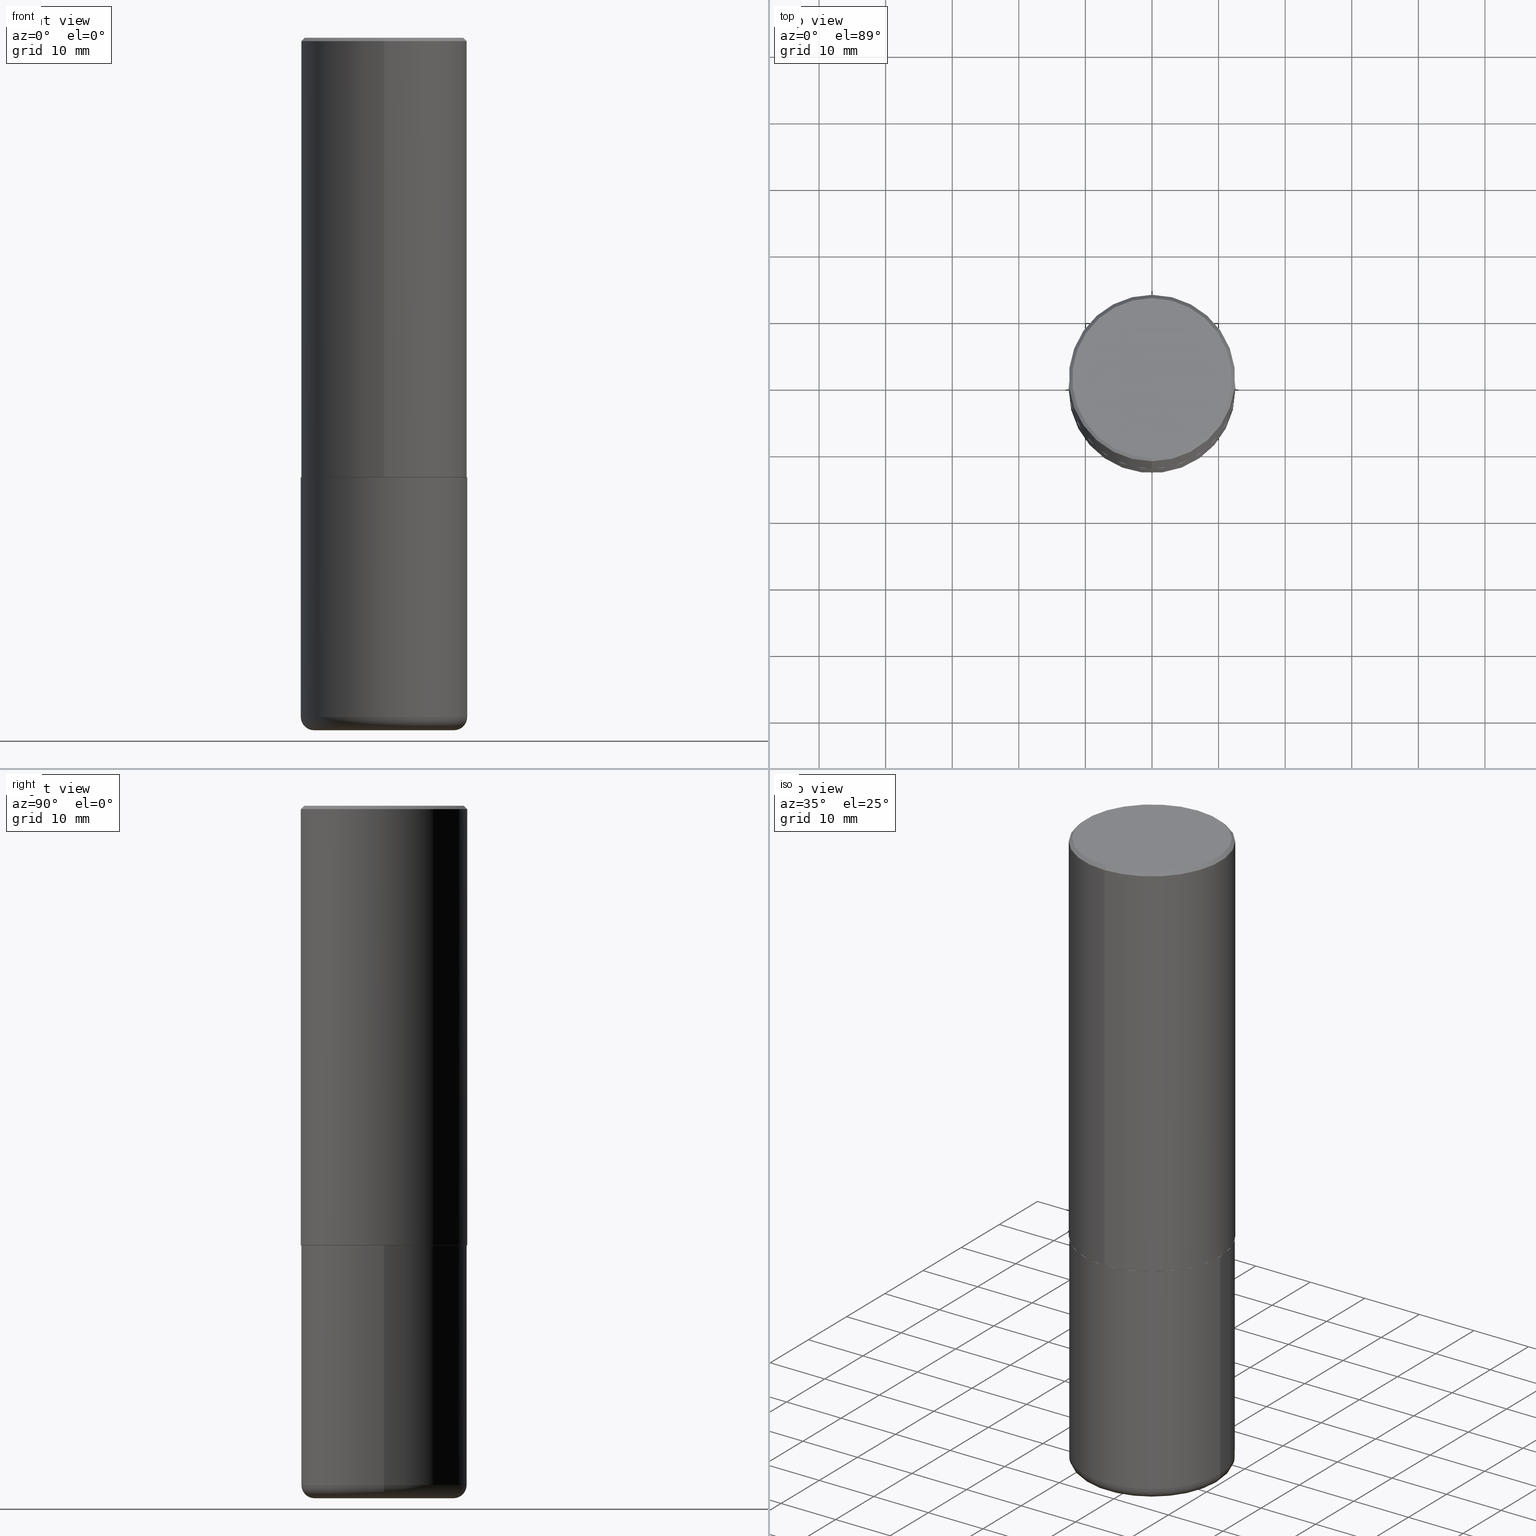
[diagram: canonical four-view strip — front | top / right | iso, engineering-drawing reading convention]
A machine part, canonical four-view strip (front | top / right | iso — engineering-drawing reading convention). The complete STEP part file that produces these views, byte-faithful:
ISO-10303-21;
HEADER;
FILE_DESCRIPTION (( 'STEP AP203' ),
    '1' );
FILE_NAME ('46656.STEP',
    '2024-03-05T03:31:19',
    ( '' ),
    ( '' ),
    'SwSTEP 2.0',
    'SolidWorks 2023',
    '' );
FILE_SCHEMA (( 'CONFIG_CONTROL_DESIGN' ));
ENDSEC;

DATA;
#1 = CYLINDRICAL_SURFACE ( 'NONE', #76, 0.4921500000000000874 ) ;
#2 = FACE_OUTER_BOUND ( 'NONE', #298, .T. ) ;
#3 = ORIENTED_EDGE ( 'NONE', *, *, #408, .T. ) ;
#4 =( NAMED_UNIT ( * ) PLANE_ANGLE_UNIT ( ) SI_UNIT ( $, .RADIAN. ) );
#5 = VERTEX_POINT ( 'NONE', #95 ) ;
#6 = DIRECTION ( 'NONE',  ( 1.000000000000000000, -6.982962677686266711E-15, 4.883557194083112901E-29 ) ) ;
#7 = EDGE_LOOP ( 'NONE', ( #326, #80 ) ) ;
#8 = AXIS2_PLACEMENT_3D ( 'NONE', #34, #66, #188 ) ;
#9 = CIRCLE ( 'NONE', #55, 0.4921499999999999764 ) ;
#10 = UNCERTAINTY_MEASURE_WITH_UNIT (LENGTH_MEASURE( 1.000000000000000082E-05 ), #135, 'distance_accuracy_value', 'NONE');
#11 = VERTEX_POINT ( 'NONE', #148 ) ;
#12 = DIRECTION ( 'NONE',  ( -2.446448598478590805E-29, 3.490078220512605001E-15, 1.000000000000000000 ) ) ;
#13 = VERTEX_POINT ( 'NONE', #407 ) ;
#14 = EDGE_CURVE ( 'NONE', #75, #331, #274, .T. ) ;
#15 = PERSON_AND_ORGANIZATION ( #280, #103 ) ;
#16 = FACE_OUTER_BOUND ( 'NONE', #158, .T. ) ;
#17 = AXIS2_PLACEMENT_3D ( 'NONE', #337, #87, #414 ) ;
#18 = CONICAL_SURFACE ( 'NONE', #231, 0.4911499999999999755, 0.7853981633974141952 ) ;
#19 = MANIFOLD_SOLID_BREP ( 'Body-Move/Copy2[1]', #140 ) ;
#20 = CARTESIAN_POINT ( 'NONE',  ( 0.4134499999999999287, -1.690819667961569252E-14, -4.015800000000000480 ) ) ;
#21 = EDGE_CURVE ( 'NONE', #369, #107, #357, .T. ) ;
#22 = PERSON_AND_ORGANIZATION ( #280, #103 ) ;
#23 = DIRECTION ( 'NONE',  ( 6.982962677686265922E-15, 1.000000000000000000, -3.486624039460256542E-15 ) ) ;
#24 = DIRECTION ( 'NONE',  ( -6.982962677686265922E-15, -1.000000000000000000, 3.486624039460256542E-15 ) ) ;
#25 = MANIFOLD_SOLID_BREP ( 'Body-Move/Copy2[2]', #124 ) ;
#26 = CIRCLE ( 'NONE', #299, 0.4134499999999999287 ) ;
#27 = VERTEX_POINT ( 'NONE', #58 ) ;
#28 = EDGE_CURVE ( 'NONE', #75, #11, #93, .T. ) ;
#29 = PLANE ( 'NONE',  #381 ) ;
#30 = VECTOR ( 'NONE', #342, 39.37007874015748143 ) ;
#31 = CARTESIAN_POINT ( 'NONE',  ( 9.820513631878272860E-29, -1.402109076052630500E-14, -4.015800000000000480 ) ) ;
#32 = AXIS2_PLACEMENT_3D ( 'NONE', #371, #339, #60 ) ;
#33 = APPROVAL ( #51, 'UNSPECIFIED' ) ;
#34 = CARTESIAN_POINT ( 'NONE',  ( 0.000000000000000000, 0.000000000000000000, 0.000000000000000000 ) ) ;
#35 = VERTEX_POINT ( 'NONE', #178 ) ;
#36 = AXIS2_PLACEMENT_3D ( 'NONE', #242, #152, #405 ) ;
#37 = APPROVAL ( #273, 'UNSPECIFIED' ) ;
#38 = DIRECTION ( 'NONE',  ( -4.937700262164378437E-15, -0.7071067811865208164, 0.7071067811865739960 ) ) ;
#39 = ORIENTED_EDGE ( 'NONE', *, *, #361, .T. ) ;
#40 = DIRECTION ( 'NONE',  ( 1.000000000000000000, -6.982962677686266711E-15, 0.000000000000000000 ) ) ;
#41 = ORIENTED_EDGE ( 'NONE', *, *, #53, .T. ) ;
#42 = ORIENTED_EDGE ( 'NONE', *, *, #47, .T. ) ;
#43 = AXIS2_PLACEMENT_3D ( 'NONE', #308, #277, #247 ) ;
#44 = AXIS2_PLACEMENT_3D ( 'NONE', #354, #325, #390 ) ;
#45 = PRODUCT_DEFINITION_FORMATION_WITH_SPECIFIED_SOURCE ( 'ANY', '', #251, .NOT_KNOWN. ) ;
#46 = DIRECTION ( 'NONE',  ( -6.982962677686265922E-15, -1.000000000000000000, 3.337287582609300506E-15 ) ) ;
#47 = EDGE_CURVE ( 'NONE', #114, #13, #176, .T. ) ;
#48 = ORIENTED_EDGE ( 'NONE', *, *, #238, .F. ) ;
#49 = COORDINATED_UNIVERSAL_TIME_OFFSET ( 5, 0, .BEHIND. ) ;
#50 = DIRECTION ( 'NONE',  ( -6.982962677686265922E-15, -1.000000000000000000, 3.337287582609300506E-15 ) ) ;
#51 = APPROVAL_STATUS ( 'not_yet_approved' ) ;
#52 = CARTESIAN_POINT ( 'NONE',  ( 3.436665081823296565E-15, 0.4921499999999999764, -0.02000000000000182188 ) ) ;
#53 = EDGE_CURVE ( 'NONE', #27, #11, #54, .T. ) ;
#54 = CIRCLE ( 'NONE', #160, 0.4921500000000002539 ) ;
#55 = AXIS2_PLACEMENT_3D ( 'NONE', #285, #321, #162 ) ;
#56 = APPROVAL_PERSON_ORGANIZATION ( #177, #37, #312 ) ;
#57 = DIRECTION ( 'NONE',  ( 1.000000000000000000, 0.000000000000000000, 0.000000000000000000 ) ) ;
#58 = CARTESIAN_POINT ( 'NONE',  ( -3.436665081823234245E-15, -0.4921500000000093022, -2.597399999999999043 ) ) ;
#59 = PERSON_AND_ORGANIZATION_ROLE ( 'design_supplier' ) ;
#60 = DIRECTION ( 'NONE',  ( 6.982962677686265922E-15, 1.000000000000000000, -3.490078220512605001E-15 ) ) ;
#61 = CARTESIAN_POINT ( 'NONE',  ( 0.000000000000000000, 0.000000000000000000, 0.000000000000000000 ) ) ;
#62 = EDGE_CURVE ( 'NONE', #205, #369, #309, .T. ) ;
#63 = FACE_OUTER_BOUND ( 'NONE', #356, .T. ) ;
#64 = DESIGN_CONTEXT ( 'detailed design', #119, 'design' ) ;
#65 = AXIS2_PLACEMENT_3D ( 'NONE', #20, #305, #374 ) ;
#66 = DIRECTION ( 'NONE',  ( -2.446448598478591086E-29, 3.490078220512604606E-15, 1.000000000000000000 ) ) ;
#67 = DIRECTION ( 'NONE',  ( -2.446448598478591086E-29, 3.490078220512604606E-15, 1.000000000000000000 ) ) ;
#68 = FACE_OUTER_BOUND ( 'NONE', #83, .T. ) ;
#69 = EDGE_CURVE ( 'NONE', #304, #5, #186, .T. ) ;
#70 = AXIS2_PLACEMENT_3D ( 'NONE', #257, #145, #355 ) ;
#71 = CARTESIAN_POINT ( 'NONE',  ( 6.354405589688293982E-29, -9.065129169959442290E-15, -2.597400000000000375 ) ) ;
#72 = DIRECTION ( 'NONE',  ( -2.446448598478591086E-29, 3.490078220512604606E-15, 1.000000000000000000 ) ) ;
#73 = LINE ( 'NONE', #323, #315 ) ;
#74 = CARTESIAN_POINT ( 'NONE',  ( 0.4921499999999999764, -3.436665081823295777E-15, 2.399810400207969603E-29 ) ) ;
#75 = VERTEX_POINT ( 'NONE', #97 ) ;
#76 = AXIS2_PLACEMENT_3D ( 'NONE', #385, #72, #388 ) ;
#77 = FACE_OUTER_BOUND ( 'NONE', #368, .T. ) ;
#78 = ORIENTED_EDGE ( 'NONE', *, *, #391, .F. ) ;
#79 = CARTESIAN_POINT ( 'NONE',  ( 9.820513631878272860E-29, -1.402109076052630500E-14, -4.015800000000000480 ) ) ;
#80 = ORIENTED_EDGE ( 'NONE', *, *, #21, .T. ) ;
#81 = EDGE_CURVE ( 'NONE', #27, #5, #278, .T. ) ;
#82 = DIRECTION ( 'NONE',  ( -2.446448598478591086E-29, 3.490078220512604606E-15, 1.000000000000000000 ) ) ;
#83 = EDGE_LOOP ( 'NONE', ( #227, #365, #3, #208 ) ) ;
#84 = AXIS2_PLACEMENT_3D ( 'NONE', #31, #219, #225 ) ;
#85 = APPROVAL_STATUS ( 'not_yet_approved' ) ;
#86 = ORIENTED_EDGE ( 'NONE', *, *, #81, .F. ) ;
#87 = DIRECTION ( 'NONE',  ( -2.445468806185136597E-29, 3.491481338843145583E-15, 1.000000000000000000 ) ) ;
#88 = ADVANCED_FACE ( 'NONE', ( #63 ), #409, .T. ) ;
#89 = MECHANICAL_CONTEXT ( 'NONE', #382, 'mechanical' ) ;
#90 = DIRECTION ( 'NONE',  ( 4.937700262164533054E-15, 0.7071067811865430208, -0.7071067811865520136 ) ) ;
#91 = LOCAL_TIME ( 22, 31, 19.00000000000000000, #306 ) ;
#92 = DATE_AND_TIME ( #406, #402 ) ;
#93 = LINE ( 'NONE', #129, #255 ) ;
#94 = COORDINATED_UNIVERSAL_TIME_OFFSET ( 5, 0, .BEHIND. ) ;
#95 = CARTESIAN_POINT ( 'NONE',  ( -3.376394089603258656E-15, -0.4921500000000000874, -0.01999999999999839059 ) ) ;
#96 = EDGE_CURVE ( 'NONE', #146, #205, #349, .T. ) ;
#97 = CARTESIAN_POINT ( 'NONE',  ( 3.493383360364596291E-15, 0.4911499999999908717, -2.598400000000002485 ) ) ;
#98 = FACE_OUTER_BOUND ( 'NONE', #240, .T. ) ;
#99 = ORIENTED_EDGE ( 'NONE', *, *, #361, .F. ) ;
#100 = EDGE_CURVE ( 'NONE', #35, #131, #161, .T. ) ;
#101 = DIRECTION ( 'NONE',  ( -2.446448598478591086E-29, 3.490078220512604606E-15, 1.000000000000000000 ) ) ;
#102 = CARTESIAN_POINT ( 'NONE',  ( 6.354306145991459756E-29, -9.072265110850031044E-15, -2.598400000000000265 ) ) ;
#103 = ORGANIZATION ( 'UNSPECIFIED', 'UNSPECIFIED', '' ) ;
#104 = ADVANCED_FACE ( 'NONE', ( #16 ), #275, .T. ) ;
#105 = ORIENTED_EDGE ( 'NONE', *, *, #128, .T. ) ;
#106 = CARTESIAN_POINT ( 'NONE',  ( 3.496936074043333291E-15, 0.4921500000000000874, -1.717641996225278752E-15 ) ) ;
#107 = VERTEX_POINT ( 'NONE', #154 ) ;
#108 = AXIS2_PLACEMENT_3D ( 'NONE', #404, #118, #150 ) ;
#109 = EDGE_LOOP ( 'NONE', ( #284, #78, #42, #105 ) ) ;
#110 = EDGE_CURVE ( 'NONE', #35, #146, #224, .T. ) ;
#111 = CARTESIAN_POINT ( 'NONE',  ( -3.429682119145545865E-15, -0.4911500000000090238, -2.598399999999999377 ) ) ;
#112 = ORIENTED_EDGE ( 'NONE', *, *, #69, .T. ) ;
#113 = APPROVAL_DATE_TIME ( #399, #37 ) ;
#114 = VERTEX_POINT ( 'NONE', #212 ) ;
#115 = AXIS2_PLACEMENT_3D ( 'NONE', #71, #132, #320 ) ;
#116 = ADVANCED_FACE ( 'NONE', ( #121 ), #244, .F. ) ;
#117 = COORDINATED_UNIVERSAL_TIME_OFFSET ( 5, 0, .BEHIND. ) ;
#118 = DIRECTION ( 'NONE',  ( 2.438088387897960049E-29, -3.491481338843145188E-15, -1.000000000000000000 ) ) ;
#119 = APPLICATION_CONTEXT ( 'configuration controlled 3d designs of mechanical parts and assemblies' ) ;
#120 = APPROVAL_ROLE ( '' ) ;
#121 = FACE_OUTER_BOUND ( 'NONE', #333, .T. ) ;
#122 = PERSON_AND_ORGANIZATION ( #280, #103 ) ;
#123 = CARTESIAN_POINT ( 'NONE',  ( -0.4921499999999999764, 3.496936074043332897E-15, -2.420853904668951509E-29 ) ) ;
#124 = CLOSED_SHELL ( 'NONE', ( #387, #175, #88, #353, #289, #223, #292, #116 ) ) ;
#125 = CC_DESIGN_SECURITY_CLASSIFICATION ( #351, ( #45 ) ) ;
#126 = DATE_AND_TIME ( #336, #218 ) ;
#127 = CARTESIAN_POINT ( 'NONE',  ( 0.4921500000000000874, -1.745775584234960235E-14, -4.015800000000000480 ) ) ;
#128 = EDGE_CURVE ( 'NONE', #13, #5, #142, .T. ) ;
#129 = CARTESIAN_POINT ( 'NONE',  ( 3.489830646685794998E-15, 0.4911499999999908717, -2.598400000000002485 ) ) ;
#130 = CYLINDRICAL_SURFACE ( 'NONE', #8, 0.4921500000000000874 ) ;
#131 = VERTEX_POINT ( 'NONE', #127 ) ;
#132 = DIRECTION ( 'NONE',  ( -2.446448598478591086E-29, 3.490078220512604606E-15, 1.000000000000000000 ) ) ;
#133 = VECTOR ( 'NONE', #228, 39.37007874015748143 ) ;
#134 = PLANE ( 'NONE',  #324 ) ;
#135 =( CONVERSION_BASED_UNIT ( 'INCH', #395 ) LENGTH_UNIT ( ) NAMED_UNIT ( #380 ) );
#136 = ORIENTED_EDGE ( 'NONE', *, *, #147, .F. ) ;
#137 = LINE ( 'NONE', #106, #179 ) ;
#138 = ORIENTED_EDGE ( 'NONE', *, *, #110, .F. ) ;
#139 = CARTESIAN_POINT ( 'NONE',  ( -3.325455558251186907E-45, 4.744060441062489317E-31, 1.359299173634482631E-16 ) ) ;
#140 = CLOSED_SHELL ( 'NONE', ( #398, #329, #245, #169, #252, #104 ) ) ;
#141 = EDGE_LOOP ( 'NONE', ( #328, #363, #136, #174 ) ) ;
#142 = CIRCLE ( 'NONE', #267, 0.4921500000000000319 ) ;
#143 = FACE_OUTER_BOUND ( 'NONE', #296, .T. ) ;
#144 = ORIENTED_EDGE ( 'NONE', *, *, #100, .T. ) ;
#145 = DIRECTION ( 'NONE',  ( -2.445468806185136597E-29, 3.491481338843145583E-15, 1.000000000000000000 ) ) ;
#146 = VERTEX_POINT ( 'NONE', #352 ) ;
#147 = EDGE_CURVE ( 'NONE', #107, #369, #9, .T. ) ;
#148 = CARTESIAN_POINT ( 'NONE',  ( 3.496936074043366423E-15, 0.4921499999999912056, -2.597400000000002152 ) ) ;
#149 = TOROIDAL_SURFACE ( 'NONE', #84, 0.4134499999999999287, 0.07870000000000026974 ) ;
#150 = DIRECTION ( 'NONE',  ( -1.000000000000000000, 6.982962677686265922E-15, -4.876176775795935793E-29 ) ) ;
#151 = DATE_AND_TIME ( #410, #332 ) ;
#152 = DIRECTION ( 'NONE',  ( -2.445468806185136597E-29, 3.491481338843145583E-15, 1.000000000000000000 ) ) ;
#153 = DIRECTION ( 'NONE',  ( 0.000000000000000000, 0.000000000000000000, 1.000000000000000000 ) ) ;
#154 = CARTESIAN_POINT ( 'NONE',  ( 0.4921499999999999764, -1.250893019267332682E-14, -2.598400000000000265 ) ) ;
#155 = CIRCLE ( 'NONE', #394, 0.4921500000000000319 ) ;
#156 = CALENDAR_DATE ( 2024, 4, 3 ) ;
#157 = CARTESIAN_POINT ( 'NONE',  ( -3.436665081823296565E-15, -0.4921500000000000874, 1.717641996225278752E-15 ) ) ;
#158 = EDGE_LOOP ( 'NONE', ( #138, #198 ) ) ;
#159 = DIRECTION ( 'NONE',  ( -6.982962677686265133E-15, -1.000000000000000000, 3.490078220512604606E-15 ) ) ;
#160 = AXIS2_PLACEMENT_3D ( 'NONE', #413, #180, #206 ) ;
#161 = CIRCLE ( 'NONE', #65, 0.07870000000000031137 ) ;
#162 = DIRECTION ( 'NONE',  ( 1.000000000000000000, -6.982962677686265922E-15, 0.000000000000000000 ) ) ;
#163 = DIRECTION ( 'NONE',  ( -2.446448598478590525E-29, 3.490078220512605001E-15, 1.000000000000000000 ) ) ;
#164 = PRODUCT_DEFINITION ( 'UNKNOWN', '', #45, #64 ) ;
#165 = DIRECTION ( 'NONE',  ( 1.000000000000000000, -6.982962677686265922E-15, 4.876176775795935793E-29 ) ) ;
#166 = ORIENTED_EDGE ( 'NONE', *, *, #96, .T. ) ;
#167 =( LENGTH_UNIT ( ) NAMED_UNIT ( * ) SI_UNIT ( $, .METRE. ) );
#168 = ORIENTED_EDGE ( 'NONE', *, *, #347, .T. ) ;
#169 = ADVANCED_FACE ( 'NONE', ( #259 ), #191, .T. ) ;
#170 = ORIENTED_EDGE ( 'NONE', *, *, #110, .T. ) ;
#171 =( NAMED_UNIT ( * ) SI_UNIT ( $, .STERADIAN. ) SOLID_ANGLE_UNIT ( ) );
#172 = CIRCLE ( 'NONE', #44, 0.4921500000000000319 ) ;
#173 = ORIENTED_EDGE ( 'NONE', *, *, #192, .T. ) ;
#174 = ORIENTED_EDGE ( 'NONE', *, *, #347, .F. ) ;
#175 = ADVANCED_FACE ( 'NONE', ( #98 ), #1, .T. ) ;
#176 = LINE ( 'NONE', #52, #230 ) ;
#177 = PERSON_AND_ORGANIZATION ( #280, #103 ) ;
#178 = CARTESIAN_POINT ( 'NONE',  ( 0.4134499999999999287, -1.718297626098264901E-14, -4.094500000000000917 ) ) ;
#179 = VECTOR ( 'NONE', #12, 39.37007874015748143 ) ;
#180 = DIRECTION ( 'NONE',  ( -2.446448598478591086E-29, 3.490078220512604606E-15, 1.000000000000000000 ) ) ;
#181 = CC_DESIGN_DATE_AND_TIME_ASSIGNMENT ( #126, #207, ( #164 ) ) ;
#182 = SECURITY_CLASSIFICATION_LEVEL ( 'unclassified' ) ;
#183 = CARTESIAN_POINT ( 'NONE',  ( 4.892897196957208060E-31, -6.980156441025246535E-17, -0.02000000000000010797 ) ) ;
#184 = ADVANCED_BREP_SHAPE_REPRESENTATION ( '46656', ( #19, #25, #358 ), #195 ) ;
#185 = DATE_AND_TIME ( #213, #293 ) ;
#186 = LINE ( 'NONE', #253, #209 ) ;
#187 = CC_DESIGN_DATE_AND_TIME_ASSIGNMENT ( #185, #341, ( #351 ) ) ;
#188 = DIRECTION ( 'NONE',  ( -6.982962677686265922E-15, -1.000000000000000000, 3.490078220512604606E-15 ) ) ;
#189 = DIRECTION ( 'NONE',  ( -6.982962677686265922E-15, -1.000000000000000000, 3.337287582609300506E-15 ) ) ;
#190 = AXIS2_PLACEMENT_3D ( 'NONE', #384, #101, #189 ) ;
#191 = CYLINDRICAL_SURFACE ( 'NONE', #373, 0.4921499999999999764 ) ;
#192 = EDGE_CURVE ( 'NONE', #5, #13, #155, .T. ) ;
#193 = CARTESIAN_POINT ( 'NONE',  ( 0.000000000000000000, 0.000000000000000000, 0.000000000000000000 ) ) ;
#194 = AXIS2_PLACEMENT_3D ( 'NONE', #335, #250, #50 ) ;
#195 =( GEOMETRIC_REPRESENTATION_CONTEXT ( 3 ) GLOBAL_UNCERTAINTY_ASSIGNED_CONTEXT ( ( #10 ) ) GLOBAL_UNIT_ASSIGNED_CONTEXT ( ( #135, #4, #171 ) ) REPRESENTATION_CONTEXT ( 'NONE', 'WORKASPACE' ) );
#196 = CARTESIAN_POINT ( 'NONE',  ( -0.4921499999999999764, -8.049741861644835125E-15, -2.598400000000000265 ) ) ;
#197 = CC_DESIGN_APPROVAL ( #263, ( #164 ) ) ;
#198 = ORIENTED_EDGE ( 'NONE', *, *, #340, .F. ) ;
#199 = DIRECTION ( 'NONE',  ( -2.446448598478591086E-29, 3.490078220512604606E-15, 1.000000000000000000 ) ) ;
#200 = ORIENTED_EDGE ( 'NONE', *, *, #47, .F. ) ;
#201 = ORIENTED_EDGE ( 'NONE', *, *, #100, .F. ) ;
#202 = CYLINDRICAL_SURFACE ( 'NONE', #307, 0.4921499999999999764 ) ;
#203 = ORIENTED_EDGE ( 'NONE', *, *, #322, .F. ) ;
#204 = PERSON_AND_ORGANIZATION ( #280, #103 ) ;
#205 = VERTEX_POINT ( 'NONE', #220 ) ;
#206 = DIRECTION ( 'NONE',  ( -6.982962677686266711E-15, -1.000000000000000000, 3.330506545156064285E-15 ) ) ;
#207 = DATE_TIME_ROLE ( 'creation_date' ) ;
#208 = ORIENTED_EDGE ( 'NONE', *, *, #314, .F. ) ;
#209 = VECTOR ( 'NONE', #378, 39.37007874015748143 ) ;
#210 = CONICAL_SURFACE ( 'NONE', #190, 0.4911499999999999755, 0.7853981633974141952 ) ;
#211 = APPROVAL_DATE_TIME ( #92, #33 ) ;
#212 = CARTESIAN_POINT ( 'NONE',  ( 3.366835455046433267E-15, 0.4721499999999999031, -1.511910514451577641E-15 ) ) ;
#213 = CALENDAR_DATE ( 2024, 4, 3 ) ;
#214 = DIRECTION ( 'NONE',  ( 5.024295867787889629E-15, 0.7071067811865257013, 0.7071067811865691111 ) ) ;
#215 = CC_DESIGN_PERSON_AND_ORGANIZATION_ASSIGNMENT ( #15, #310, ( #351 ) ) ;
#216 = DIRECTION ( 'NONE',  ( -6.982962677686265922E-15, -1.000000000000000000, 3.486624039460256542E-15 ) ) ;
#217 = CONICAL_SURFACE ( 'NONE', #418, 0.4921500000000000319, 0.7853981633974453924 ) ;
#218 = LOCAL_TIME ( 22, 31, 19.00000000000000000, #94 ) ;
#219 = DIRECTION ( 'NONE',  ( -2.445468806185136597E-29, 3.491481338843145583E-15, 1.000000000000000000 ) ) ;
#220 = CARTESIAN_POINT ( 'NONE',  ( -0.4921500000000000874, -1.052415468648297131E-14, -4.015800000000000480 ) ) ;
#221 = ORIENTED_EDGE ( 'NONE', *, *, #192, .F. ) ;
#222 = AXIS2_PLACEMENT_3D ( 'NONE', #313, #334, #23 ) ;
#223 = ADVANCED_FACE ( 'NONE', ( #68 ), #210, .T. ) ;
#224 = CIRCLE ( 'NONE', #36, 0.4134499999999999287 ) ;
#225 = DIRECTION ( 'NONE',  ( 1.000000000000000000, -6.982962677686266711E-15, 4.883557194083112901E-29 ) ) ;
#226 = DIRECTION ( 'NONE',  ( -6.982962677686265922E-15, -1.000000000000000000, 3.337287582609300506E-15 ) ) ;
#227 = ORIENTED_EDGE ( 'NONE', *, *, #28, .F. ) ;
#228 = DIRECTION ( 'NONE',  ( -2.445468806185136877E-29, 3.491481338843145188E-15, 1.000000000000000000 ) ) ;
#229 = ORIENTED_EDGE ( 'NONE', *, *, #314, .T. ) ;
#230 = VECTOR ( 'NONE', #90, 39.37007874015748143 ) ;
#231 = AXIS2_PLACEMENT_3D ( 'NONE', #330, #269, #46 ) ;
#232 = DIRECTION ( 'NONE',  ( -6.982962677686265133E-15, -1.000000000000000000, 3.490078220512604606E-15 ) ) ;
#233 = ORIENTED_EDGE ( 'NONE', *, *, #322, .T. ) ;
#234 = CARTESIAN_POINT ( 'NONE',  ( 1.001297202692504327E-28, -1.429587034189326465E-14, -4.094500000000000917 ) ) ;
#235 = ORIENTED_EDGE ( 'NONE', *, *, #14, .F. ) ;
#236 = DIRECTION ( 'NONE',  ( -2.445468806185136597E-29, 3.491481338843145583E-15, 1.000000000000000000 ) ) ;
#237 = ORIENTED_EDGE ( 'NONE', *, *, #375, .T. ) ;
#238 = EDGE_CURVE ( 'NONE', #304, #114, #256, .T. ) ;
#239 = SHAPE_DEFINITION_REPRESENTATION ( #415, #184 ) ;
#240 = EDGE_LOOP ( 'NONE', ( #41, #233, #221, #86 ) ) ;
#241 = PERSON_AND_ORGANIZATION_ROLE ( 'creator' ) ;
#242 = CARTESIAN_POINT ( 'NONE',  ( 1.001297202692504327E-28, -1.429587034189326465E-14, -4.094500000000000917 ) ) ;
#243 = APPROVAL_DATE_TIME ( #151, #263 ) ;
#244 = PLANE ( 'NONE',  #32 ) ;
#245 = ADVANCED_FACE ( 'NONE', ( #261 ), #134, .F. ) ;
#246 = APPLICATION_PROTOCOL_DEFINITION ( 'international standard', 'config_control_design', 1994, #119 ) ;
#247 = DIRECTION ( 'NONE',  ( -1.000000000000000000, 7.105427357600989237E-15, 0.000000000000000000 ) ) ;
#248 = CIRCLE ( 'NONE', #70, 0.4921500000000000319 ) ;
#249 = PERSON_AND_ORGANIZATION ( #280, #103 ) ;
#250 = DIRECTION ( 'NONE',  ( -2.446448598478591086E-29, 3.490078220512604606E-15, 1.000000000000000000 ) ) ;
#251 = PRODUCT ( '46656', '46656', '', ( #89 ) ) ;
#252 = ADVANCED_FACE ( 'NONE', ( #416 ), #149, .T. ) ;
#253 = CARTESIAN_POINT ( 'NONE',  ( -3.376394089603258656E-15, -0.4921500000000000874, -0.01999999999999839059 ) ) ;
#254 = DIRECTION ( 'NONE',  ( -2.446448598478591086E-29, 3.490078220512604606E-15, 1.000000000000000000 ) ) ;
#255 = VECTOR ( 'NONE', #214, 39.37007874015748854 ) ;
#256 = CIRCLE ( 'NONE', #411, 0.4721499999999999031 ) ;
#257 = CARTESIAN_POINT ( 'NONE',  ( 9.820513631878272860E-29, -1.402109076052630500E-14, -4.015800000000000480 ) ) ;
#258 = ORIENTED_EDGE ( 'NONE', *, *, #62, .F. ) ;
#259 = FACE_OUTER_BOUND ( 'NONE', #294, .T. ) ;
#260 = CC_DESIGN_PERSON_AND_ORGANIZATION_ASSIGNMENT ( #204, #372, ( #164 ) ) ;
#261 = FACE_OUTER_BOUND ( 'NONE', #7, .T. ) ;
#262 = CIRCLE ( 'NONE', #288, 0.4721499999999999031 ) ;
#263 = APPROVAL ( #85, 'UNSPECIFIED' ) ;
#264 = ORIENTED_EDGE ( 'NONE', *, *, #391, .T. ) ;
#265 = FACE_OUTER_BOUND ( 'NONE', #109, .T. ) ;
#266 = ORIENTED_EDGE ( 'NONE', *, *, #81, .T. ) ;
#267 = AXIS2_PLACEMENT_3D ( 'NONE', #183, #311, #24 ) ;
#268 = ORIENTED_EDGE ( 'NONE', *, *, #408, .F. ) ;
#269 = DIRECTION ( 'NONE',  ( -2.446448598478591086E-29, 3.490078220512604606E-15, 1.000000000000000000 ) ) ;
#270 = ORIENTED_EDGE ( 'NONE', *, *, #128, .F. ) ;
#271 = CARTESIAN_POINT ( 'NONE',  ( 4.892897196957208060E-31, -6.980156441025246535E-17, -0.02000000000000010797 ) ) ;
#272 = EDGE_LOOP ( 'NONE', ( #397, #400, #144, #360 ) ) ;
#273 = APPROVAL_STATUS ( 'not_yet_approved' ) ;
#274 = CIRCLE ( 'NONE', #194, 0.4911499999999999755 ) ;
#275 = PLANE ( 'NONE',  #108 ) ;
#276 = CC_DESIGN_PERSON_AND_ORGANIZATION_ASSIGNMENT ( #22, #403, ( #251 ) ) ;
#277 = DIRECTION ( 'NONE',  ( 7.105427357601001859E-15, 1.000000000000000000, -3.491481338843145583E-15 ) ) ;
#278 = LINE ( 'NONE', #157, #30 ) ;
#279 = APPLICATION_PROTOCOL_DEFINITION ( 'international standard', 'config_control_design', 1994, #382 ) ;
#280 = PERSON ( 'UNSPECIFIED', 'UNSPECIFIED', 'UNSPECIFIED', ('UNSPECIFIED'), ('UNSPECIFIED'), ('UNSPECIFIED') ) ;
#281 = ORIENTED_EDGE ( 'NONE', *, *, #28, .T. ) ;
#282 = AXIS2_PLACEMENT_3D ( 'NONE', #79, #295, #6 ) ;
#283 = CC_DESIGN_APPROVAL ( #33, ( #45 ) ) ;
#284 = ORIENTED_EDGE ( 'NONE', *, *, #69, .F. ) ;
#285 = CARTESIAN_POINT ( 'NONE',  ( 6.354306145991459756E-29, -9.072265110850031044E-15, -2.598400000000000265 ) ) ;
#286 = ORIENTED_EDGE ( 'NONE', *, *, #318, .F. ) ;
#287 = CARTESIAN_POINT ( 'NONE',  ( 6.356852038286771524E-29, -9.068619248179953101E-15, -2.598400000000000265 ) ) ;
#288 = AXIS2_PLACEMENT_3D ( 'NONE', #139, #82, #232 ) ;
#289 = ADVANCED_FACE ( 'NONE', ( #343 ), #130, .T. ) ;
#290 = CARTESIAN_POINT ( 'NONE',  ( 0.000000000000000000, 0.000000000000000000, 0.000000000000000000 ) ) ;
#291 = CARTESIAN_POINT ( 'NONE',  ( -3.325455558251186907E-45, 4.744060441062489317E-31, 1.359299173634482631E-16 ) ) ;
#292 = ADVANCED_FACE ( 'NONE', ( #2 ), #29, .F. ) ;
#293 = LOCAL_TIME ( 22, 31, 19.00000000000000000, #376 ) ;
#294 = EDGE_LOOP ( 'NONE', ( #258, #237, #168, #396 ) ) ;
#295 = DIRECTION ( 'NONE',  ( -2.445468806185136597E-29, 3.491481338843145583E-15, 1.000000000000000000 ) ) ;
#296 = EDGE_LOOP ( 'NONE', ( #170, #166, #286, #201 ) ) ;
#297 = CARTESIAN_POINT ( 'NONE',  ( 6.356852038286772645E-29, -9.068619248179954679E-15, -2.598400000000000709 ) ) ;
#298 = EDGE_LOOP ( 'NONE', ( #99, #235 ) ) ;
#299 = AXIS2_PLACEMENT_3D ( 'NONE', #234, #236, #40 ) ;
#300 = APPROVAL_PERSON_ORGANIZATION ( #370, #33, #367 ) ;
#301 = CC_DESIGN_PERSON_AND_ORGANIZATION_ASSIGNMENT ( #338, #241, ( #45 ) ) ;
#302 = ORIENTED_EDGE ( 'NONE', *, *, #238, .T. ) ;
#303 = DIRECTION ( 'NONE',  ( 6.982962677686265922E-15, 1.000000000000000000, -3.486624039460256542E-15 ) ) ;
#304 = VERTEX_POINT ( 'NONE', #417 ) ;
#305 = DIRECTION ( 'NONE',  ( -6.982962677686266711E-15, -1.000000000000000000, 3.491481338843145583E-15 ) ) ;
#306 = COORDINATED_UNIVERSAL_TIME_OFFSET ( 5, 0, .BEHIND. ) ;
#307 = AXIS2_PLACEMENT_3D ( 'NONE', #193, #327, #165 ) ;
#308 = CARTESIAN_POINT ( 'NONE',  ( -0.4134499999999999287, -1.108335181952617168E-14, -4.015800000000000480 ) ) ;
#309 = LINE ( 'NONE', #123, #393 ) ;
#310 = PERSON_AND_ORGANIZATION_ROLE ( 'classification_officer' ) ;
#311 = DIRECTION ( 'NONE',  ( -2.446448598478591086E-29, 3.490078220512604606E-15, 1.000000000000000000 ) ) ;
#312 = APPROVAL_ROLE ( '' ) ;
#313 = CARTESIAN_POINT ( 'NONE',  ( 4.892897196957208060E-31, -6.980156441025246535E-17, -0.02000000000000010797 ) ) ;
#314 = EDGE_CURVE ( 'NONE', #11, #27, #344, .T. ) ;
#315 = VECTOR ( 'NONE', #38, 39.37007874015748854 ) ;
#316 = DIRECTION ( 'NONE',  ( 2.438088387897960049E-29, -3.491481338843145188E-15, -1.000000000000000000 ) ) ;
#317 = DIRECTION ( 'NONE',  ( -2.445468806185136597E-29, 3.491481338843145583E-15, 1.000000000000000000 ) ) ;
#318 = EDGE_CURVE ( 'NONE', #131, #205, #248, .T. ) ;
#319 = DIRECTION ( 'NONE',  ( -1.000000000000000000, 6.982962677686265922E-15, -4.876176775795935793E-29 ) ) ;
#320 = DIRECTION ( 'NONE',  ( -6.982962677686266711E-15, -1.000000000000000000, 3.330506545156064285E-15 ) ) ;
#321 = DIRECTION ( 'NONE',  ( -2.445468806185136597E-29, 3.491481338843145583E-15, 1.000000000000000000 ) ) ;
#322 = EDGE_CURVE ( 'NONE', #11, #13, #137, .T. ) ;
#323 = CARTESIAN_POINT ( 'NONE',  ( -3.429682119145545865E-15, -0.4911500000000090238, -2.598399999999999377 ) ) ;
#324 = AXIS2_PLACEMENT_3D ( 'NONE', #102, #316, #319 ) ;
#325 = DIRECTION ( 'NONE',  ( -2.445468806185136597E-29, 3.491481338843145583E-15, 1.000000000000000000 ) ) ;
#326 = ORIENTED_EDGE ( 'NONE', *, *, #147, .T. ) ;
#327 = DIRECTION ( 'NONE',  ( -2.445468806185136597E-29, 3.491481338843145583E-15, 1.000000000000000000 ) ) ;
#328 = ORIENTED_EDGE ( 'NONE', *, *, #318, .T. ) ;
#329 = ADVANCED_FACE ( 'NONE', ( #143 ), #386, .T. ) ;
#330 = CARTESIAN_POINT ( 'NONE',  ( 6.356852038286772645E-29, -9.068619248179954679E-15, -2.598400000000000709 ) ) ;
#331 = VERTEX_POINT ( 'NONE', #111 ) ;
#332 = LOCAL_TIME ( 22, 31, 19.00000000000000000, #49 ) ;
#333 = EDGE_LOOP ( 'NONE', ( #264, #302 ) ) ;
#334 = DIRECTION ( 'NONE',  ( 2.446448598478591086E-29, -3.490078220512604606E-15, -1.000000000000000000 ) ) ;
#335 = CARTESIAN_POINT ( 'NONE',  ( 6.356852038286772645E-29, -9.068619248179954679E-15, -2.598400000000000709 ) ) ;
#336 = CALENDAR_DATE ( 2024, 4, 3 ) ;
#337 = CARTESIAN_POINT ( 'NONE',  ( 6.354306145991459756E-29, -9.072265110850031044E-15, -2.598400000000000265 ) ) ;
#338 = PERSON_AND_ORGANIZATION ( #280, #103 ) ;
#339 = DIRECTION ( 'NONE',  ( 2.446448598478590525E-29, -3.490078220512605001E-15, -1.000000000000000000 ) ) ;
#340 = EDGE_CURVE ( 'NONE', #146, #35, #26, .T. ) ;
#341 = DATE_TIME_ROLE ( 'classification_date' ) ;
#342 = DIRECTION ( 'NONE',  ( -2.446448598478590805E-29, 3.490078220512605001E-15, 1.000000000000000000 ) ) ;
#343 = FACE_OUTER_BOUND ( 'NONE', #392, .T. ) ;
#344 = CIRCLE ( 'NONE', #115, 0.4921500000000002539 ) ;
#345 = APPROVAL_PERSON_ORGANIZATION ( #122, #263, #120 ) ;
#346 = CARTESIAN_POINT ( 'NONE',  ( 4.892897196957208060E-31, -6.980156441025246535E-17, -0.02000000000000010797 ) ) ;
#347 = EDGE_CURVE ( 'NONE', #131, #107, #364, .T. ) ;
#348 = DIRECTION ( 'NONE',  ( 1.000000000000000000, -6.982962677686265922E-15, 4.876176775795935793E-29 ) ) ;
#349 = CIRCLE ( 'NONE', #43, 0.07870000000000031137 ) ;
#350 = CIRCLE ( 'NONE', #401, 0.4911499999999999755 ) ;
#351 = SECURITY_CLASSIFICATION ( '', '', #182 ) ;
#352 = CARTESIAN_POINT ( 'NONE',  ( -0.4134499999999999287, -1.094114304368804896E-14, -4.094500000000000917 ) ) ;
#353 = ADVANCED_FACE ( 'NONE', ( #265 ), #217, .T. ) ;
#354 = CARTESIAN_POINT ( 'NONE',  ( 9.820513631878272860E-29, -1.402109076052630500E-14, -4.015800000000000480 ) ) ;
#355 = DIRECTION ( 'NONE',  ( 1.000000000000000000, -6.982962677686265133E-15, 0.000000000000000000 ) ) ;
#356 = EDGE_LOOP ( 'NONE', ( #48, #112, #173, #200 ) ) ;
#357 = CIRCLE ( 'NONE', #17, 0.4921499999999999764 ) ;
#358 = AXIS2_PLACEMENT_3D ( 'NONE', #61, #153, #57 ) ;
#359 = FACE_OUTER_BOUND ( 'NONE', #141, .T. ) ;
#360 = ORIENTED_EDGE ( 'NONE', *, *, #375, .F. ) ;
#361 = EDGE_CURVE ( 'NONE', #331, #75, #350, .T. ) ;
#362 = DIRECTION ( 'NONE',  ( 2.446448598478591086E-29, -3.490078220512604606E-15, -1.000000000000000000 ) ) ;
#363 = ORIENTED_EDGE ( 'NONE', *, *, #62, .T. ) ;
#364 = LINE ( 'NONE', #74, #133 ) ;
#365 = ORIENTED_EDGE ( 'NONE', *, *, #14, .T. ) ;
#366 = CC_DESIGN_PERSON_AND_ORGANIZATION_ASSIGNMENT ( #249, #59, ( #45 ) ) ;
#367 = APPROVAL_ROLE ( '' ) ;
#368 = EDGE_LOOP ( 'NONE', ( #39, #281, #389, #268 ) ) ;
#369 = VERTEX_POINT ( 'NONE', #196 ) ;
#370 = PERSON_AND_ORGANIZATION ( #280, #103 ) ;
#371 = CARTESIAN_POINT ( 'NONE',  ( 3.297005828269569575E-15, 0.4721499999999999031, -1.579875473133301847E-15 ) ) ;
#372 = PERSON_AND_ORGANIZATION_ROLE ( 'creator' ) ;
#373 = AXIS2_PLACEMENT_3D ( 'NONE', #290, #317, #348 ) ;
#374 = DIRECTION ( 'NONE',  ( 1.000000000000000000, -6.982962677686267499E-15, 0.000000000000000000 ) ) ;
#375 = EDGE_CURVE ( 'NONE', #205, #131, #172, .T. ) ;
#376 = COORDINATED_UNIVERSAL_TIME_OFFSET ( 5, 0, .BEHIND. ) ;
#377 = DIRECTION ( 'NONE',  ( -2.445468806185136877E-29, 3.491481338843145188E-15, 1.000000000000000000 ) ) ;
#378 = DIRECTION ( 'NONE',  ( -4.851104656540950075E-15, -0.7071067811865479058, -0.7071067811865471286 ) ) ;
#379 = PRODUCT_RELATED_PRODUCT_CATEGORY ( 'detail', '', ( #251 ) ) ;
#380 = DIMENSIONAL_EXPONENTS ( 1.000000000000000000, 0.000000000000000000, 0.000000000000000000, 0.000000000000000000, 0.000000000000000000, 0.000000000000000000, 0.000000000000000000 ) ;
#381 = AXIS2_PLACEMENT_3D ( 'NONE', #287, #163, #383 ) ;
#382 = APPLICATION_CONTEXT ( 'configuration controlled 3d designs of mechanical parts and assemblies' ) ;
#383 = DIRECTION ( 'NONE',  ( -6.982962677686265922E-15, -1.000000000000000000, 3.490078220512605001E-15 ) ) ;
#384 = CARTESIAN_POINT ( 'NONE',  ( 6.356852038286772645E-29, -9.068619248179954679E-15, -2.598400000000000709 ) ) ;
#385 = CARTESIAN_POINT ( 'NONE',  ( 0.000000000000000000, 0.000000000000000000, 0.000000000000000000 ) ) ;
#386 = TOROIDAL_SURFACE ( 'NONE', #282, 0.4134499999999999287, 0.07870000000000026974 ) ;
#387 = ADVANCED_FACE ( 'NONE', ( #77 ), #18, .T. ) ;
#388 = DIRECTION ( 'NONE',  ( -6.982962677686265922E-15, -1.000000000000000000, 3.490078220512604606E-15 ) ) ;
#389 = ORIENTED_EDGE ( 'NONE', *, *, #53, .F. ) ;
#390 = DIRECTION ( 'NONE',  ( 1.000000000000000000, -6.982962677686265133E-15, 0.000000000000000000 ) ) ;
#391 = EDGE_CURVE ( 'NONE', #114, #304, #262, .T. ) ;
#392 = EDGE_LOOP ( 'NONE', ( #203, #229, #266, #270 ) ) ;
#393 = VECTOR ( 'NONE', #377, 39.37007874015748143 ) ;
#394 = AXIS2_PLACEMENT_3D ( 'NONE', #346, #67, #216 ) ;
#395 = LENGTH_MEASURE_WITH_UNIT ( LENGTH_MEASURE( 0.02539999999999999897 ), #167 );
#396 = ORIENTED_EDGE ( 'NONE', *, *, #21, .F. ) ;
#397 = ORIENTED_EDGE ( 'NONE', *, *, #96, .F. ) ;
#398 = ADVANCED_FACE ( 'NONE', ( #359 ), #202, .T. ) ;
#399 = DATE_AND_TIME ( #156, #91 ) ;
#400 = ORIENTED_EDGE ( 'NONE', *, *, #340, .T. ) ;
#401 = AXIS2_PLACEMENT_3D ( 'NONE', #297, #199, #226 ) ;
#402 = LOCAL_TIME ( 22, 31, 19.00000000000000000, #117 ) ;
#403 = PERSON_AND_ORGANIZATION_ROLE ( 'design_owner' ) ;
#404 = CARTESIAN_POINT ( 'NONE',  ( 6.234605142301953637E-29, -1.970670677196138597E-14, -4.094500000000000917 ) ) ;
#405 = DIRECTION ( 'NONE',  ( 1.000000000000000000, -6.982962677686266711E-15, 0.000000000000000000 ) ) ;
#406 = CALENDAR_DATE ( 2024, 4, 3 ) ;
#407 = CARTESIAN_POINT ( 'NONE',  ( 3.436665081823296565E-15, 0.4921499999999999764, -0.02000000000000182188 ) ) ;
#408 = EDGE_CURVE ( 'NONE', #331, #27, #73, .T. ) ;
#409 = CONICAL_SURFACE ( 'NONE', #222, 0.4921500000000000319, 0.7853981633974453924 ) ;
#410 = CALENDAR_DATE ( 2024, 4, 3 ) ;
#411 = AXIS2_PLACEMENT_3D ( 'NONE', #291, #254, #159 ) ;
#412 = CC_DESIGN_APPROVAL ( #37, ( #351 ) ) ;
#413 = CARTESIAN_POINT ( 'NONE',  ( 6.354405589688293982E-29, -9.065129169959442290E-15, -2.597400000000000375 ) ) ;
#414 = DIRECTION ( 'NONE',  ( 1.000000000000000000, -6.982962677686265922E-15, 0.000000000000000000 ) ) ;
#415 = PRODUCT_DEFINITION_SHAPE ( 'NONE', 'NONE',  #164 ) ;
#416 = FACE_OUTER_BOUND ( 'NONE', #272, .T. ) ;
#417 = CARTESIAN_POINT ( 'NONE',  ( -3.307789109625543325E-15, -0.4721499999999999031, 1.783770349178474069E-15 ) ) ;
#418 = AXIS2_PLACEMENT_3D ( 'NONE', #271, #362, #303 ) ;
ENDSEC;
END-ISO-10303-21;
